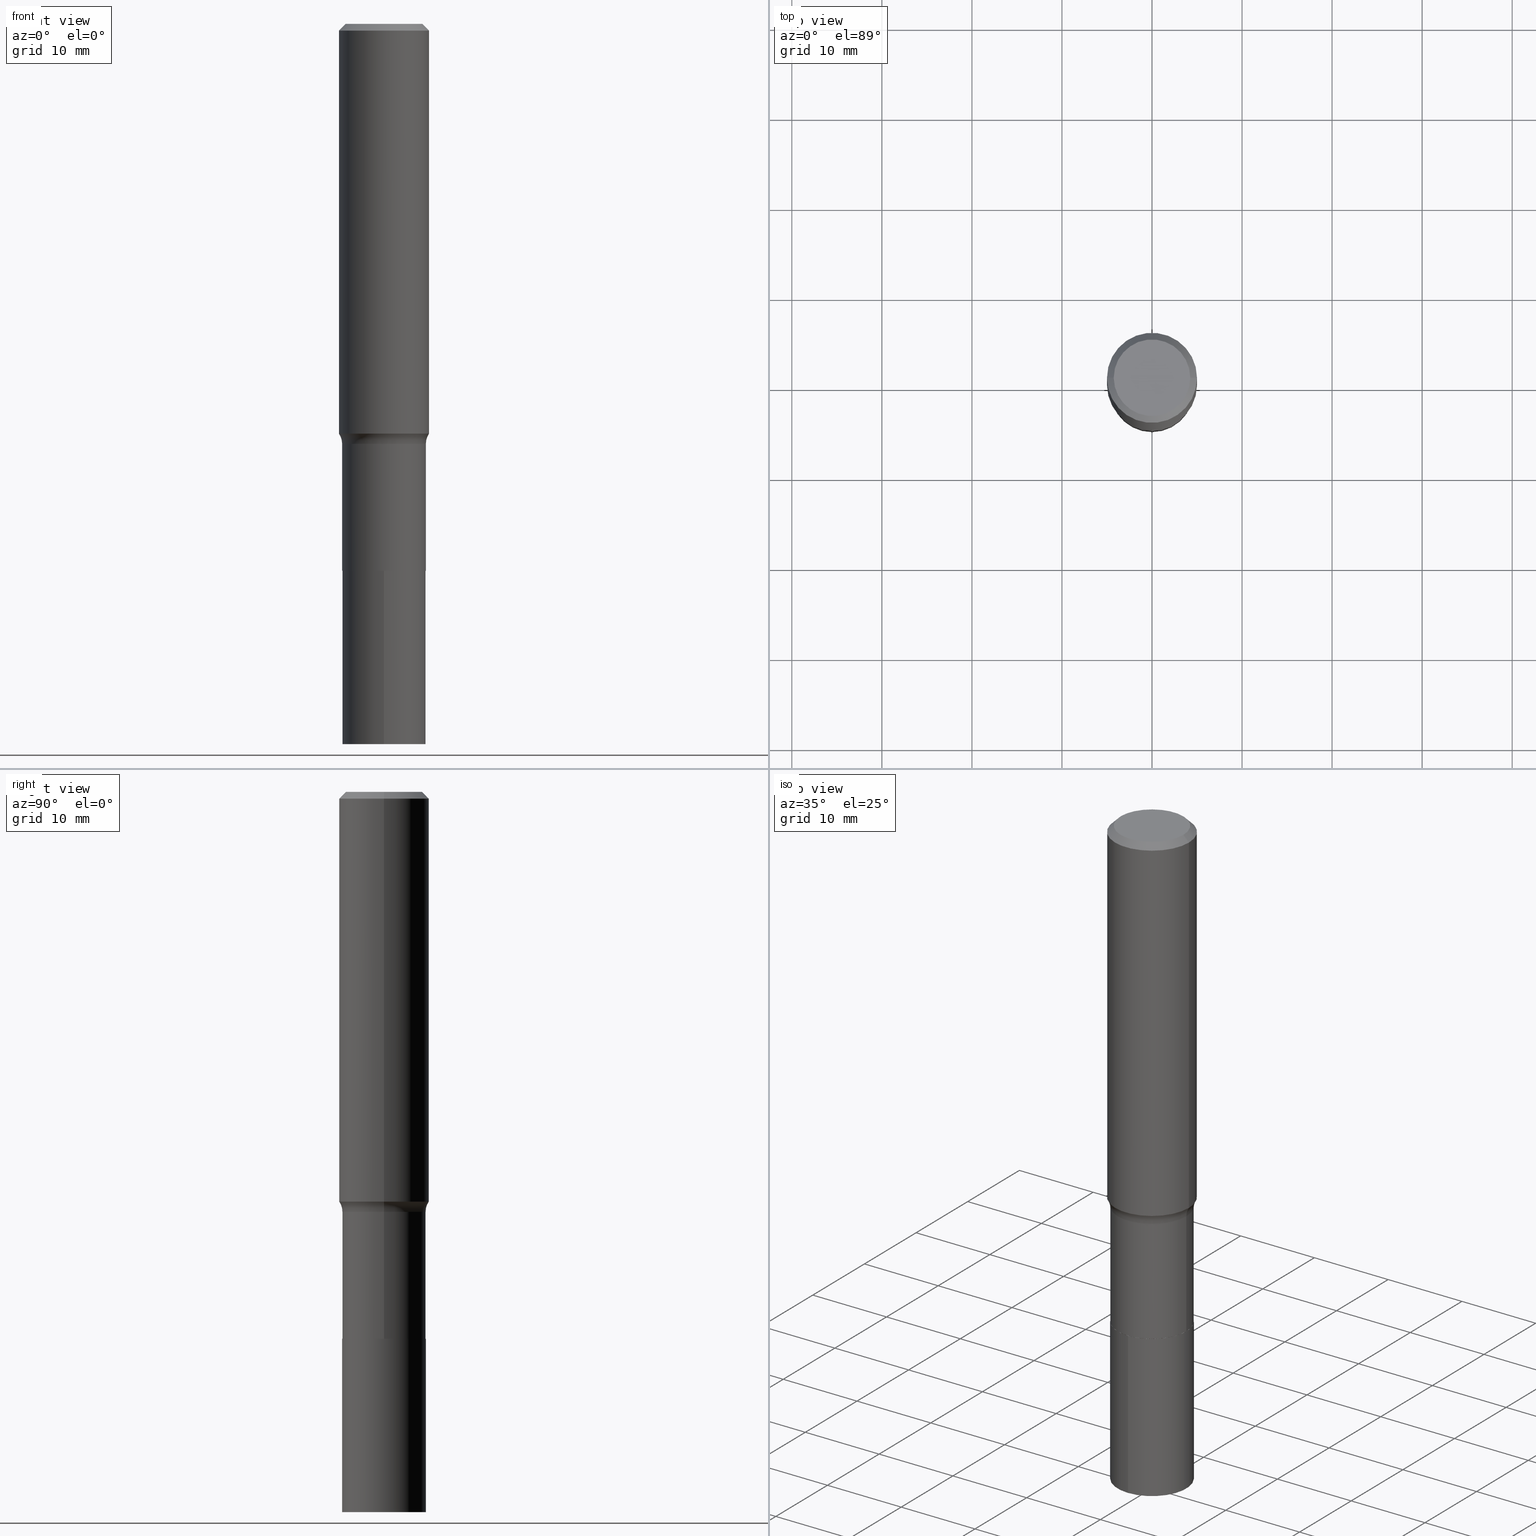
[diagram: canonical four-view strip — front | top / right | iso, engineering-drawing reading convention]
A machine part, canonical four-view strip (front | top / right | iso — engineering-drawing reading convention). The complete STEP part file that produces these views, byte-faithful:
ISO-10303-21;
HEADER;
FILE_DESCRIPTION (( 'STEP AP203' ),
    '1' );
FILE_NAME ('67140.STEP',
    '2024-04-19T15:59:57',
    ( '' ),
    ( '' ),
    'SwSTEP 2.0',
    'SolidWorks 2023',
    '' );
FILE_SCHEMA (( 'CONFIG_CONTROL_DESIGN' ));
ENDSEC;

DATA;
#1 = CC_DESIGN_DATE_AND_TIME_ASSIGNMENT ( #272, #175, ( #251 ) ) ;
#2 = DIRECTION ( 'NONE',  ( 1.000000000000000000, -6.982962677686265922E-15, 4.876176775795935793E-29 ) ) ;
#3 = AXIS2_PLACEMENT_3D ( 'NONE', #265, #199, #339 ) ;
#4 = AXIS2_PLACEMENT_3D ( 'NONE', #451, #375, #160 ) ;
#5 = DIRECTION ( 'NONE',  ( -2.445468806185136877E-29, 3.491481338843145188E-15, 1.000000000000000000 ) ) ;
#6 = VERTEX_POINT ( 'NONE', #300 ) ;
#7 = CARTESIAN_POINT ( 'NONE',  ( 4.491592556320240911E-29, -6.412803775053206012E-15, -1.836699999999999999 ) ) ;
#8 = ORIENTED_EDGE ( 'NONE', *, *, #409, .F. ) ;
#9 = FACE_OUTER_BOUND ( 'NONE', #196, .T. ) ;
#10 = EDGE_LOOP ( 'NONE', ( #369, #79, #461, #88 ) ) ;
#11 = VECTOR ( 'NONE', #313, 39.37007874015748143 ) ;
#12 = CARTESIAN_POINT ( 'NONE',  ( 4.491592556320240911E-29, -6.412803775053206012E-15, -1.836699999999999999 ) ) ;
#13 = VERTEX_POINT ( 'NONE', #60 ) ;
#14 = DIRECTION ( 'NONE',  ( -2.446021969847448330E-29, 3.490689176994594250E-15, 1.000000000000000000 ) ) ;
#15 = PERSON ( 'UNSPECIFIED', 'UNSPECIFIED', 'UNSPECIFIED', ('UNSPECIFIED'), ('UNSPECIFIED'), ('UNSPECIFIED') ) ;
#16 = ORIENTED_EDGE ( 'NONE', *, *, #118, .T. ) ;
#17 = DIRECTION ( 'NONE',  ( -6.982962677686266711E-15, -1.000000000000000000, 3.491481338843145583E-15 ) ) ;
#18 = FACE_OUTER_BOUND ( 'NONE', #189, .T. ) ;
#19 = CLOSED_SHELL ( 'NONE', ( #121, #253, #83, #343 ) ) ;
#20 = PERSON_AND_ORGANIZATION ( #15, #330 ) ;
#21 = CIRCLE ( 'NONE', #4, 0.1830499999999999072 ) ;
#22 = EDGE_LOOP ( 'NONE', ( #405, #331, #150, #219 ) ) ;
#23 = VERTEX_POINT ( 'NONE', #234 ) ;
#24 = VERTEX_POINT ( 'NONE', #133 ) ;
#25 = PERSON_AND_ORGANIZATION_ROLE ( 'creator' ) ;
#26 = EDGE_LOOP ( 'NONE', ( #159, #374, #295, #81 ) ) ;
#27 = PRODUCT_DEFINITION_SHAPE ( 'NONE', 'NONE',  #251 ) ;
#28 = ORIENTED_EDGE ( 'NONE', *, *, #87, .F. ) ;
#29 = AXIS2_PLACEMENT_3D ( 'NONE', #12, #252, #395 ) ;
#30 = ADVANCED_FACE ( 'NONE', ( #228 ), #92, .T. ) ;
#31 = DIRECTION ( 'NONE',  ( 1.000000000000000000, -6.982962677686269866E-15, 0.000000000000000000 ) ) ;
#32 = APPROVAL_DATE_TIME ( #387, #381 ) ;
#33 = APPROVAL ( #371, 'UNSPECIFIED' ) ;
#34 = DIRECTION ( 'NONE',  ( 1.000000000000000000, -6.982962677686269866E-15, 0.000000000000000000 ) ) ;
#35 = APPROVAL_ROLE ( '' ) ;
#36 = CYLINDRICAL_SURFACE ( 'NONE', #354, 0.1830499999999999905 ) ;
#37 = AXIS2_PLACEMENT_3D ( 'NONE', #336, #269, #306 ) ;
#38 = AXIS2_PLACEMENT_3D ( 'NONE', #438, #332, #122 ) ;
#39 = LOCAL_TIME ( 11, 59, 57.00000000000000000, #108 ) ;
#40 = VECTOR ( 'NONE', #303, 39.37007874015748143 ) ;
#41 = CARTESIAN_POINT ( 'NONE',  ( 5.848583196872372803E-29, -8.350226769977267192E-15, -2.391600000000000392 ) ) ;
#42 = CYLINDRICAL_SURFACE ( 'NONE', #74, 0.1968500000000001082 ) ;
#43 = CARTESIAN_POINT ( 'NONE',  ( -0.1968500000000001082, 1.398703375343757985E-15, -9.682923725166787881E-30 ) ) ;
#44 = AXIS2_PLACEMENT_3D ( 'NONE', #394, #356, #76 ) ;
#45 = AXIS2_PLACEMENT_3D ( 'NONE', #449, #454, #305 ) ;
#46 = EDGE_CURVE ( 'NONE', #448, #23, #229, .T. ) ;
#47 = PLANE ( 'NONE',  #192 ) ;
#48 = ORIENTED_EDGE ( 'NONE', *, *, #112, .F. ) ;
#49 = DIRECTION ( 'NONE',  ( -6.982962677686265922E-15, -1.000000000000000000, 3.490689176994594250E-15 ) ) ;
#50 = EDGE_CURVE ( 'NONE', #6, #194, #417, .T. ) ;
#51 = ORIENTED_EDGE ( 'NONE', *, *, #458, .F. ) ;
#52 = DIRECTION ( 'NONE',  ( -2.445468806185136597E-29, 3.491481338843145583E-15, 1.000000000000000000 ) ) ;
#53 = VERTEX_POINT ( 'NONE', #310 ) ;
#54 = AXIS2_PLACEMENT_3D ( 'NONE', #69, #433, #2 ) ;
#55 = CARTESIAN_POINT ( 'NONE',  ( 7.220858017463203355E-31, -1.030947152326915746E-16, -0.02952750000000016820 ) ) ;
#56 = ORIENTED_EDGE ( 'NONE', *, *, #46, .F. ) ;
#57 = ORIENTED_EDGE ( 'NONE', *, *, #59, .T. ) ;
#58 = MECHANICAL_CONTEXT ( 'NONE', #334, 'mechanical' ) ;
#59 = EDGE_CURVE ( 'NONE', #13, #97, #162, .T. ) ;
#60 = CARTESIAN_POINT ( 'NONE',  ( 0.1673224999999999851, -1.300749711163072397E-15, 4.096137381456741925E-18 ) ) ;
#61 = CARTESIAN_POINT ( 'NONE',  ( 0.1830499999999999905, -9.626712347458317933E-15, -2.391100000000000225 ) ) ;
#62 = AXIS2_PLACEMENT_3D ( 'NONE', #259, #256, #289 ) ;
#63 = ADVANCED_FACE ( 'NONE', ( #18 ), #443, .T. ) ;
#64 = VERTEX_POINT ( 'NONE', #304 ) ;
#65 = DIRECTION ( 'NONE',  ( 1.000000000000000000, -6.982962677686269866E-15, 0.000000000000000000 ) ) ;
#66 = ADVANCED_FACE ( 'NONE', ( #455 ), #415, .F. ) ;
#67 = ORIENTED_EDGE ( 'NONE', *, *, #276, .T. ) ;
#68 = AXIS2_PLACEMENT_3D ( 'NONE', #144, #176, #247 ) ;
#69 = CARTESIAN_POINT ( 'NONE',  ( 5.848583196872372803E-29, -8.350226769977267192E-15, -2.391600000000000392 ) ) ;
#70 = DIRECTION ( 'NONE',  ( -6.982962677686264344E-15, -1.000000000000000000, 2.984810700534567995E-15 ) ) ;
#71 = FACE_OUTER_BOUND ( 'NONE', #262, .T. ) ;
#72 = COORDINATED_UNIVERSAL_TIME_OFFSET ( 5, 0, .BEHIND. ) ;
#73 = CARTESIAN_POINT ( 'NONE',  ( -0.1825499999999999623, -7.050481778673093961E-15, -2.391600000000000392 ) ) ;
#74 = AXIS2_PLACEMENT_3D ( 'NONE', #323, #291, #325 ) ;
#75 = CALENDAR_DATE ( 2024, 19, 4 ) ;
#76 = DIRECTION ( 'NONE',  ( -6.982962677686264344E-15, -1.000000000000000000, 2.984810700534567995E-15 ) ) ;
#77 = MANIFOLD_SOLID_BREP ( 'Body-Move/Copy2[2]', #315 ) ;
#78 = LINE ( 'NONE', #296, #384 ) ;
#79 = ORIENTED_EDGE ( 'NONE', *, *, #87, .T. ) ;
#80 = DIRECTION ( 'NONE',  ( -2.445468806185136597E-29, 3.491481338843145583E-15, 1.000000000000000000 ) ) ;
#81 = ORIENTED_EDGE ( 'NONE', *, *, #233, .F. ) ;
#82 = CC_DESIGN_PERSON_AND_ORGANIZATION_ASSIGNMENT ( #434, #318, ( #341 ) ) ;
#83 = ADVANCED_FACE ( 'NONE', ( #180 ), #36, .T. ) ;
#84 = CARTESIAN_POINT ( 'NONE',  ( 0.1825499999999999623, -9.624966606788895640E-15, -2.391600000000000392 ) ) ;
#85 = ORIENTED_EDGE ( 'NONE', *, *, #239, .T. ) ;
#86 = CARTESIAN_POINT ( 'NONE',  ( -5.008488096090108951E-47, 7.150793614331948590E-33, 2.048068690724054183E-18 ) ) ;
#87 = EDGE_CURVE ( 'NONE', #166, #260, #172, .T. ) ;
#88 = ORIENTED_EDGE ( 'NONE', *, *, #216, .F. ) ;
#89 = EDGE_CURVE ( 'NONE', #13, #401, #348, .T. ) ;
#90 = AXIS2_PLACEMENT_3D ( 'NONE', #206, #351, #34 ) ;
#91 = LOCAL_TIME ( 11, 59, 57.00000000000000000, #274 ) ;
#92 = CYLINDRICAL_SURFACE ( 'NONE', #37, 0.1830499999999999350 ) ;
#93 = PRODUCT ( '67140', '67140', '', ( #58 ) ) ;
#94 = DIRECTION ( 'NONE',  ( 2.438088387897960049E-29, -3.491481338843145188E-15, -1.000000000000000000 ) ) ;
#95 = ORIENTED_EDGE ( 'NONE', *, *, #46, .T. ) ;
#96 =( LENGTH_UNIT ( ) NAMED_UNIT ( * ) SI_UNIT ( $, .METRE. ) );
#97 = VERTEX_POINT ( 'NONE', #465 ) ;
#98 = AXIS2_PLACEMENT_3D ( 'NONE', #440, #193, #223 ) ;
#99 = LENGTH_MEASURE_WITH_UNIT ( LENGTH_MEASURE( 0.02539999999999999897 ), #96 );
#100 = AXIS2_PLACEMENT_3D ( 'NONE', #203, #195, #456 ) ;
#101 = ORIENTED_EDGE ( 'NONE', *, *, #402, .T. ) ;
#102 = CARTESIAN_POINT ( 'NONE',  ( -0.1830499999999999072, -6.079993924371663316E-15, -1.836699999999999999 ) ) ;
#103 = CIRCLE ( 'NONE', #360, 0.1830499999999999072 ) ;
#104 = DIRECTION ( 'NONE',  ( -2.445468806185136597E-29, 3.491481338843145583E-15, 1.000000000000000000 ) ) ;
#105 = DIRECTION ( 'NONE',  ( 1.000000000000000000, -6.982962677686266711E-15, 4.883557194083112901E-29 ) ) ;
#106 = PERSON_AND_ORGANIZATION ( #15, #330 ) ;
#107 = DIRECTION ( 'NONE',  ( 2.445468806185136597E-29, -3.491481338843145583E-15, -1.000000000000000000 ) ) ;
#108 = COORDINATED_UNIVERSAL_TIME_OFFSET ( 5, 0, .BEHIND. ) ;
#109 = DIRECTION ( 'NONE',  ( 1.000000000000000000, -6.982962677686266711E-15, 4.876176775795935793E-29 ) ) ;
#110 = CIRCLE ( 'NONE', #462, 0.08000000000000002942 ) ;
#111 = LINE ( 'NONE', #220, #139 ) ;
#112 = EDGE_CURVE ( 'NONE', #24, #359, #436, .T. ) ;
#113 = DIRECTION ( 'NONE',  ( -2.445468806185136877E-29, 3.491481338843145188E-15, 1.000000000000000000 ) ) ;
#114 = EDGE_CURVE ( 'NONE', #260, #448, #142, .T. ) ;
#115 = ORIENTED_EDGE ( 'NONE', *, *, #59, .F. ) ;
#116 = FACE_OUTER_BOUND ( 'NONE', #10, .T. ) ;
#117 = TOROIDAL_SURFACE ( 'NONE', #29, 0.2630499999999999505, 0.08000000000000005718 ) ;
#118 = EDGE_CURVE ( 'NONE', #260, #166, #340, .T. ) ;
#119 = CARTESIAN_POINT ( 'NONE',  ( -0.1830499999999999350, 1.300648477808862928E-15, -9.004110682711602587E-30 ) ) ;
#120 = ORIENTED_EDGE ( 'NONE', *, *, #431, .T. ) ;
#121 = ADVANCED_FACE ( 'NONE', ( #238 ), #243, .T. ) ;
#122 = DIRECTION ( 'NONE',  ( -1.000000000000000000, 7.105427357601001859E-15, 0.000000000000000000 ) ) ;
#123 = AXIS2_PLACEMENT_3D ( 'NONE', #386, #423, #70 ) ;
#124 =( NAMED_UNIT ( * ) PLANE_ANGLE_UNIT ( ) SI_UNIT ( $, .RADIAN. ) );
#125 = ORIENTED_EDGE ( 'NONE', *, *, #426, .F. ) ;
#126 = APPROVAL_ROLE ( '' ) ;
#127 = VERTEX_POINT ( 'NONE', #102 ) ;
#128 = DIMENSIONAL_EXPONENTS ( 1.000000000000000000, 0.000000000000000000, 0.000000000000000000, 0.000000000000000000, 0.000000000000000000, 0.000000000000000000, 0.000000000000000000 ) ;
#129 = EDGE_LOOP ( 'NONE', ( #324, #156, #221, #412 ) ) ;
#130 = CONICAL_SURFACE ( 'NONE', #218, 0.1825499999999999623, 0.7853981633975507526 ) ;
#131 = APPLICATION_PROTOCOL_DEFINITION ( 'international standard', 'config_control_design', 1994, #174 ) ;
#132 = VECTOR ( 'NONE', #337, 39.37007874015748143 ) ;
#133 = CARTESIAN_POINT ( 'NONE',  ( -0.1968500000000002470, -4.857272634184849180E-15, -1.791782742737339396 ) ) ;
#134 = APPROVAL_DATE_TIME ( #211, #413 ) ;
#135 = ADVANCED_FACE ( 'NONE', ( #464 ), #425, .T. ) ;
#136 = ORIENTED_EDGE ( 'NONE', *, *, #349, .F. ) ;
#137 = FACE_OUTER_BOUND ( 'NONE', #439, .T. ) ;
#138 = PERSON_AND_ORGANIZATION_ROLE ( 'classification_officer' ) ;
#139 = VECTOR ( 'NONE', #254, 39.37007874015748143 ) ;
#140 = CARTESIAN_POINT ( 'NONE',  ( 0.1825499999999999623, -9.624966606788895640E-15, -2.391600000000000392 ) ) ;
#141 = APPROVAL_PERSON_ORGANIZATION ( #246, #413, #393 ) ;
#142 = LINE ( 'NONE', #140, #184 ) ;
#143 = SHAPE_DEFINITION_REPRESENTATION ( #27, #309 ) ;
#144 = CARTESIAN_POINT ( 'NONE',  ( 7.220858017463203355E-31, -1.030947152326915746E-16, -0.02952750000000016820 ) ) ;
#145 = ADVANCED_FACE ( 'NONE', ( #181 ), #392, .F. ) ;
#146 = DIRECTION ( 'NONE',  ( 1.000000000000000000, -6.982962677686269866E-15, 0.000000000000000000 ) ) ;
#147 = AXIS2_PLACEMENT_3D ( 'NONE', #429, #283, #105 ) ;
#148 = APPROVAL_PERSON_ORGANIZATION ( #20, #33, #126 ) ;
#149 = LINE ( 'NONE', #43, #294 ) ;
#150 = ORIENTED_EDGE ( 'NONE', *, *, #182, .T. ) ;
#151 = LINE ( 'NONE', #119, #460 ) ;
#152 = EDGE_LOOP ( 'NONE', ( #48, #85, #326, #51 ) ) ;
#153 = DIRECTION ( 'NONE',  ( 1.000000000000000000, -6.982962677686263555E-15, 0.000000000000000000 ) ) ;
#154 = AXIS2_PLACEMENT_3D ( 'NONE', #457, #204, #173 ) ;
#155 = CIRCLE ( 'NONE', #68, 0.1968500000000000250 ) ;
#156 = ORIENTED_EDGE ( 'NONE', *, *, #431, .F. ) ;
#157 = EDGE_CURVE ( 'NONE', #359, #97, #245, .T. ) ;
#158 = DIRECTION ( 'NONE',  ( 6.982962677686265922E-15, 1.000000000000000000, -3.490689176994594250E-15 ) ) ;
#159 = ORIENTED_EDGE ( 'NONE', *, *, #284, .F. ) ;
#160 = DIRECTION ( 'NONE',  ( 1.000000000000000000, -6.982962677686263555E-15, 0.000000000000000000 ) ) ;
#161 = ADVANCED_FACE ( 'NONE', ( #71 ), #383, .T. ) ;
#162 = LINE ( 'NONE', #225, #391 ) ;
#163 = SECURITY_CLASSIFICATION ( '', '', #282 ) ;
#164 = APPROVAL_DATE_TIME ( #373, #33 ) ;
#165 = EDGE_CURVE ( 'NONE', #267, #97, #155, .T. ) ;
#166 = VERTEX_POINT ( 'NONE', #73 ) ;
#167 = ORIENTED_EDGE ( 'NONE', *, *, #226, .T. ) ;
#168 = CARTESIAN_POINT ( 'NONE',  ( -0.1825499999999999623, -7.053131005847205162E-15, -2.391600000000000392 ) ) ;
#169 = ORIENTED_EDGE ( 'NONE', *, *, #284, .T. ) ;
#170 = DIRECTION ( 'NONE',  ( -1.000000000000000000, 6.982962677686265922E-15, -4.876176775795935793E-29 ) ) ;
#171 = CC_DESIGN_PERSON_AND_ORGANIZATION_ASSIGNMENT ( #266, #25, ( #251 ) ) ;
#172 = CIRCLE ( 'NONE', #452, 0.1825499999999999623 ) ;
#173 = DIRECTION ( 'NONE',  ( 1.000000000000000000, -6.982962677686271444E-15, 0.000000000000000000 ) ) ;
#174 = APPLICATION_CONTEXT ( 'configuration controlled 3d designs of mechanical parts and assemblies' ) ;
#175 = DATE_TIME_ROLE ( 'creation_date' ) ;
#176 = DIRECTION ( 'NONE',  ( -2.445468806185136597E-29, 3.491481338843145583E-15, 1.000000000000000000 ) ) ;
#177 = ADVANCED_FACE ( 'NONE', ( #137 ), #355, .T. ) ;
#178 = DIRECTION ( 'NONE',  ( -1.000000000000000000, 6.982962677686265922E-15, 0.000000000000000000 ) ) ;
#179 = CIRCLE ( 'NONE', #287, 0.1968500000000002470 ) ;
#180 = FACE_OUTER_BOUND ( 'NONE', #22, .T. ) ;
#181 = FACE_OUTER_BOUND ( 'NONE', #129, .T. ) ;
#182 = EDGE_CURVE ( 'NONE', #194, #53, #285, .T. ) ;
#183 = FACE_OUTER_BOUND ( 'NONE', #152, .T. ) ;
#184 = VECTOR ( 'NONE', #319, 39.37007874015748143 ) ;
#185 =( GEOMETRIC_REPRESENTATION_CONTEXT ( 3 ) GLOBAL_UNCERTAINTY_ASSIGNED_CONTEXT ( ( #430 ) ) GLOBAL_UNIT_ASSIGNED_CONTEXT ( ( #232, #124, #344 ) ) REPRESENTATION_CONTEXT ( 'NONE', 'WORKASPACE' ) );
#186 = EDGE_LOOP ( 'NONE', ( #95, #169, #125, #190 ) ) ;
#187 = DIRECTION ( 'NONE',  ( -2.445468806185136597E-29, 3.491481338843145583E-15, 1.000000000000000000 ) ) ;
#188 = DIRECTION ( 'NONE',  ( 1.000000000000000000, -6.982962677686271444E-15, 0.000000000000000000 ) ) ;
#189 = EDGE_LOOP ( 'NONE', ( #224, #57, #364, #297 ) ) ;
#190 = ORIENTED_EDGE ( 'NONE', *, *, #312, .F. ) ;
#191 = CARTESIAN_POINT ( 'NONE',  ( 0.1968500000000002470, -7.630572212631153309E-15, -1.791782742737339396 ) ) ;
#192 = AXIS2_PLACEMENT_3D ( 'NONE', #327, #14, #49 ) ;
#193 = DIRECTION ( 'NONE',  ( -2.446021969847448891E-29, 3.490689176994593856E-15, 1.000000000000000000 ) ) ;
#194 = VERTEX_POINT ( 'NONE', #382 ) ;
#195 = DIRECTION ( 'NONE',  ( 0.000000000000000000, 0.000000000000000000, 1.000000000000000000 ) ) ;
#196 = EDGE_LOOP ( 'NONE', ( #202, #167 ) ) ;
#197 = EDGE_CURVE ( 'NONE', #194, #6, #418, .T. ) ;
#198 = LINE ( 'NONE', #416, #132 ) ;
#199 = DIRECTION ( 'NONE',  ( 2.445468806185136597E-29, -3.491481338843145583E-15, -1.000000000000000000 ) ) ;
#200 = AXIS2_PLACEMENT_3D ( 'NONE', #403, #217, #158 ) ;
#201 = ORIENTED_EDGE ( 'NONE', *, *, #370, .T. ) ;
#202 = ORIENTED_EDGE ( 'NONE', *, *, #321, .T. ) ;
#203 = CARTESIAN_POINT ( 'NONE',  ( 0.000000000000000000, 0.000000000000000000, 0.000000000000000000 ) ) ;
#204 = DIRECTION ( 'NONE',  ( -2.445468806185136597E-29, 3.491481338843145583E-15, 1.000000000000000000 ) ) ;
#205 = DIRECTION ( 'NONE',  ( -2.446021969847448891E-29, 3.490689176994593856E-15, 1.000000000000000000 ) ) ;
#206 = CARTESIAN_POINT ( 'NONE',  ( 5.848583196872372803E-29, -8.350226769977267192E-15, -2.391600000000000392 ) ) ;
#207 = CARTESIAN_POINT ( 'NONE',  ( 5.848583196872372803E-29, -8.350226769977267192E-15, -2.391600000000000392 ) ) ;
#208 = PERSON_AND_ORGANIZATION_ROLE ( 'design_supplier' ) ;
#209 = CIRCLE ( 'NONE', #376, 0.1830499999999999905 ) ;
#210 = DIRECTION ( 'NONE',  ( -2.445468806185136597E-29, 3.491481338843145583E-15, 1.000000000000000000 ) ) ;
#211 = DATE_AND_TIME ( #75, #91 ) ;
#212 = FACE_OUTER_BOUND ( 'NONE', #420, .T. ) ;
#213 = ADVANCED_FACE ( 'NONE', ( #212 ), #42, .T. ) ;
#214 = CARTESIAN_POINT ( 'NONE',  ( 5.847360462469281123E-29, -8.348481029307846477E-15, -2.391100000000000225 ) ) ;
#215 = VERTEX_POINT ( 'NONE', #363 ) ;
#216 = EDGE_CURVE ( 'NONE', #23, #448, #209, .T. ) ;
#217 = DIRECTION ( 'NONE',  ( 2.446021969847448330E-29, -3.490689176994594250E-15, -1.000000000000000000 ) ) ;
#218 = AXIS2_PLACEMENT_3D ( 'NONE', #367, #187, #222 ) ;
#219 = ORIENTED_EDGE ( 'NONE', *, *, #226, .F. ) ;
#220 = CARTESIAN_POINT ( 'NONE',  ( 0.1830499999999999350, -1.278231318150470667E-15, 8.925841588094458053E-30 ) ) ;
#221 = ORIENTED_EDGE ( 'NONE', *, *, #458, .T. ) ;
#222 = DIRECTION ( 'NONE',  ( 1.000000000000000000, -6.982962677686269866E-15, 0.000000000000000000 ) ) ;
#223 = DIRECTION ( 'NONE',  ( -6.982962677686264344E-15, -1.000000000000000000, 2.984810700534567995E-15 ) ) ;
#224 = ORIENTED_EDGE ( 'NONE', *, *, #89, .F. ) ;
#225 = CARTESIAN_POINT ( 'NONE',  ( 0.1968500000000000250, -1.453583746094017706E-15, -0.02952750000000016820 ) ) ;
#226 = EDGE_CURVE ( 'NONE', #215, #53, #444, .T. ) ;
#227 = CALENDAR_DATE ( 2024, 19, 4 ) ;
#228 = FACE_OUTER_BOUND ( 'NONE', #26, .T. ) ;
#229 = CIRCLE ( 'NONE', #154, 0.1830499999999999905 ) ;
#230 = CIRCLE ( 'NONE', #38, 0.08000000000000002942 ) ;
#231 = AXIS2_PLACEMENT_3D ( 'NONE', #207, #390, #31 ) ;
#232 =( CONVERSION_BASED_UNIT ( 'INCH', #99 ) LENGTH_UNIT ( ) NAMED_UNIT ( #128 ) );
#233 = EDGE_CURVE ( 'NONE', #127, #64, #103, .T. ) ;
#234 = CARTESIAN_POINT ( 'NONE',  ( -0.1830499999999999905, -6.079993924371662527E-15, -2.391100000000000225 ) ) ;
#235 = MANIFOLD_SOLID_BREP ( 'Body-Move/Copy2[1]', #19 ) ;
#236 = PERSON_AND_ORGANIZATION ( #15, #330 ) ;
#237 = EDGE_LOOP ( 'NONE', ( #275, #342 ) ) ;
#238 = FACE_OUTER_BOUND ( 'NONE', #410, .T. ) ;
#239 = EDGE_CURVE ( 'NONE', #24, #127, #230, .T. ) ;
#240 = AXIS2_PLACEMENT_3D ( 'NONE', #468, #320, #109 ) ;
#241 = DESIGN_CONTEXT ( 'detailed design', #174, 'design' ) ;
#242 = DATE_TIME_ROLE ( 'classification_date' ) ;
#243 = CYLINDRICAL_SURFACE ( 'NONE', #123, 0.1830499999999999905 ) ;
#244 = CC_DESIGN_PERSON_AND_ORGANIZATION_ASSIGNMENT ( #385, #208, ( #341 ) ) ;
#245 = LINE ( 'NONE', #388, #278 ) ;
#246 = PERSON_AND_ORGANIZATION ( #15, #330 ) ;
#247 = DIRECTION ( 'NONE',  ( 1.000000000000000000, -6.982962677686265922E-15, 0.000000000000000000 ) ) ;
#248 = PERSON_AND_ORGANIZATION ( #15, #330 ) ;
#249 = CIRCLE ( 'NONE', #398, 0.1830499999999999905 ) ;
#250 = CARTESIAN_POINT ( 'NONE',  ( -1.278231318150412291E-15, -0.1830500000000083449, -2.391599999999999504 ) ) ;
#251 = PRODUCT_DEFINITION ( 'UNKNOWN', '', #341, #241 ) ;
#252 = DIRECTION ( 'NONE',  ( -2.445468806185136597E-29, 3.491481338843145583E-15, 1.000000000000000000 ) ) ;
#253 = ADVANCED_FACE ( 'NONE', ( #329 ), #47, .F. ) ;
#254 = DIRECTION ( 'NONE',  ( -2.445468806185136877E-29, 3.491481338843145188E-15, 1.000000000000000000 ) ) ;
#255 = ORIENTED_EDGE ( 'NONE', *, *, #89, .T. ) ;
#256 = DIRECTION ( 'NONE',  ( -2.445468806185136597E-29, 3.491481338843145583E-15, 1.000000000000000000 ) ) ;
#257 = CIRCLE ( 'NONE', #316, 0.1968500000000000250 ) ;
#258 = ORIENTED_EDGE ( 'NONE', *, *, #114, .F. ) ;
#259 = CARTESIAN_POINT ( 'NONE',  ( 0.000000000000000000, 0.000000000000000000, 0.000000000000000000 ) ) ;
#260 = VERTEX_POINT ( 'NONE', #84 ) ;
#261 = FACE_OUTER_BOUND ( 'NONE', #422, .T. ) ;
#262 = EDGE_LOOP ( 'NONE', ( #115, #8, #380, #446 ) ) ;
#263 = AXIS2_PLACEMENT_3D ( 'NONE', #352, #107, #178 ) ;
#264 = CIRCLE ( 'NONE', #45, 0.1673224999999999851 ) ;
#265 = CARTESIAN_POINT ( 'NONE',  ( 7.220858017463203355E-31, -1.030947152326915746E-16, -0.02952750000000016820 ) ) ;
#266 = PERSON_AND_ORGANIZATION ( #15, #330 ) ;
#267 = VERTEX_POINT ( 'NONE', #358 ) ;
#268 = CARTESIAN_POINT ( 'NONE',  ( 4.381748804825011085E-29, -6.255976009528609334E-15, -1.791782742737339396 ) ) ;
#269 = DIRECTION ( 'NONE',  ( -2.445468806185136597E-29, 3.491481338843145583E-15, 1.000000000000000000 ) ) ;
#270 = AXIS2_PLACEMENT_3D ( 'NONE', #273, #378, #347 ) ;
#271 = CC_DESIGN_APPROVAL ( #381, ( #163 ) ) ;
#272 = DATE_AND_TIME ( #459, #322 ) ;
#273 = CARTESIAN_POINT ( 'NONE',  ( 7.702667850016740557E-29, -1.099616916613917186E-14, -3.149600000000000843 ) ) ;
#274 = COORDINATED_UNIVERSAL_TIME_OFFSET ( 5, 0, .BEHIND. ) ;
#275 = ORIENTED_EDGE ( 'NONE', *, *, #197, .F. ) ;
#276 = EDGE_CURVE ( 'NONE', #24, #267, #149, .T. ) ;
#277 = DIRECTION ( 'NONE',  ( -6.982962677686264344E-15, -1.000000000000000000, 2.984810700534567995E-15 ) ) ;
#278 = VECTOR ( 'NONE', #435, 39.37007874015748143 ) ;
#279 = AXIS2_PLACEMENT_3D ( 'NONE', #86, #94, #170 ) ;
#280 = DIRECTION ( 'NONE',  ( 1.000000000000000000, -6.982962677686267499E-15, 4.876294436782262290E-29 ) ) ;
#281 = ADVANCED_FACE ( 'NONE', ( #116 ), #130, .T. ) ;
#282 = SECURITY_CLASSIFICATION_LEVEL ( 'unclassified' ) ;
#283 = DIRECTION ( 'NONE',  ( -2.445468806185136597E-29, 3.491481338843145583E-15, 1.000000000000000000 ) ) ;
#284 = EDGE_CURVE ( 'NONE', #23, #127, #151, .T. ) ;
#285 = LINE ( 'NONE', #250, #11 ) ;
#286 = AXIS2_PLACEMENT_3D ( 'NONE', #350, #104, #146 ) ;
#287 = AXIS2_PLACEMENT_3D ( 'NONE', #268, #335, #65 ) ;
#288 = DIRECTION ( 'NONE',  ( -2.446021969847448891E-29, 3.490689176994593856E-15, 1.000000000000000000 ) ) ;
#289 = DIRECTION ( 'NONE',  ( 1.000000000000000000, -6.982962677686266711E-15, 4.876176775795936353E-29 ) ) ;
#290 = ORIENTED_EDGE ( 'NONE', *, *, #182, .F. ) ;
#291 = DIRECTION ( 'NONE',  ( -2.445468806185136597E-29, 3.491481338843145583E-15, 1.000000000000000000 ) ) ;
#292 = ORIENTED_EDGE ( 'NONE', *, *, #409, .T. ) ;
#293 = CARTESIAN_POINT ( 'NONE',  ( 5.848583196872372803E-29, -8.350226769977267192E-15, -2.391600000000000392 ) ) ;
#294 = VECTOR ( 'NONE', #113, 39.37007874015748143 ) ;
#295 = ORIENTED_EDGE ( 'NONE', *, *, #312, .T. ) ;
#296 = CARTESIAN_POINT ( 'NONE',  ( 1.300648477808921501E-15, 0.1830499999999916083, -2.391600000000000836 ) ) ;
#297 = ORIENTED_EDGE ( 'NONE', *, *, #450, .F. ) ;
#298 = EDGE_LOOP ( 'NONE', ( #16, #101, #56, #258 ) ) ;
#299 = CARTESIAN_POINT ( 'NONE',  ( 0.2630499999999999505, -8.249672107418577542E-15, -1.836699999999999999 ) ) ;
#300 = CARTESIAN_POINT ( 'NONE',  ( 1.300648477808930770E-15, 0.1830499999999889715, -3.149600000000001288 ) ) ;
#301 = ADVANCED_FACE ( 'NONE', ( #365 ), #445, .T. ) ;
#302 = CC_DESIGN_APPROVAL ( #33, ( #251 ) ) ;
#303 = DIRECTION ( 'NONE',  ( -0.7071067811866199593, 7.493145998870616062E-15, 0.7071067811864750752 ) ) ;
#304 = CARTESIAN_POINT ( 'NONE',  ( 0.1830499999999999072, -7.691035093203675890E-15, -1.836699999999999999 ) ) ;
#305 = DIRECTION ( 'NONE',  ( 1.000000000000000000, -6.982962677686267499E-15, 4.876294436782262290E-29 ) ) ;
#306 = DIRECTION ( 'NONE',  ( 1.000000000000000000, -6.982962677686266711E-15, 4.876176775795936353E-29 ) ) ;
#307 = COORDINATED_UNIVERSAL_TIME_OFFSET ( 5, 0, .BEHIND. ) ;
#308 = ORIENTED_EDGE ( 'NONE', *, *, #112, .T. ) ;
#309 = ADVANCED_BREP_SHAPE_REPRESENTATION ( '67140', ( #235, #77, #100 ), #185 ) ;
#310 = CARTESIAN_POINT ( 'NONE',  ( -1.278231318150412291E-15, -0.1830500000000083449, -2.391599999999999504 ) ) ;
#311 = APPROVAL_STATUS ( 'not_yet_approved' ) ;
#312 = EDGE_CURVE ( 'NONE', #448, #64, #111, .T. ) ;
#313 = DIRECTION ( 'NONE',  ( -2.446021969847448891E-29, 3.490689176994594250E-15, 1.000000000000000000 ) ) ;
#314 = CARTESIAN_POINT ( 'NONE',  ( 5.848583196872372803E-29, -8.350226769977267192E-15, -2.391600000000000392 ) ) ;
#315 = CLOSED_SHELL ( 'NONE', ( #135, #63, #177, #357, #301, #30, #145, #213, #161, #397, #66, #281 ) ) ;
#316 = AXIS2_PLACEMENT_3D ( 'NONE', #55, #52, #400 ) ;
#317 = DIRECTION ( 'NONE',  ( 1.000000000000000000, -6.982962677686269866E-15, 0.000000000000000000 ) ) ;
#318 = PERSON_AND_ORGANIZATION_ROLE ( 'creator' ) ;
#319 = DIRECTION ( 'NONE',  ( 0.7071067811866199593, -2.468850131083015945E-15, 0.7071067811864750752 ) ) ;
#320 = DIRECTION ( 'NONE',  ( -2.445468806185136597E-29, 3.491481338843145583E-15, 1.000000000000000000 ) ) ;
#321 = EDGE_CURVE ( 'NONE', #53, #215, #249, .T. ) ;
#322 = LOCAL_TIME ( 11, 59, 57.00000000000000000, #307 ) ;
#323 = CARTESIAN_POINT ( 'NONE',  ( 0.000000000000000000, 0.000000000000000000, 0.000000000000000000 ) ) ;
#324 = ORIENTED_EDGE ( 'NONE', *, *, #239, .F. ) ;
#325 = DIRECTION ( 'NONE',  ( 1.000000000000000000, -6.982962677686266711E-15, 4.876176775795935793E-29 ) ) ;
#326 = ORIENTED_EDGE ( 'NONE', *, *, #233, .T. ) ;
#327 = CARTESIAN_POINT ( 'NONE',  ( 1.137593422465260839E-29, -2.039772940722404930E-14, -3.149600000000000843 ) ) ;
#328 = ORIENTED_EDGE ( 'NONE', *, *, #165, .F. ) ;
#329 = FACE_OUTER_BOUND ( 'NONE', #237, .T. ) ;
#330 = ORGANIZATION ( 'UNSPECIFIED', 'UNSPECIFIED', '' ) ;
#331 = ORIENTED_EDGE ( 'NONE', *, *, #50, .T. ) ;
#332 = DIRECTION ( 'NONE',  ( 7.105427357601001859E-15, 1.000000000000000000, -3.491481338843145583E-15 ) ) ;
#333 = EDGE_LOOP ( 'NONE', ( #362, #28 ) ) ;
#334 = APPLICATION_CONTEXT ( 'configuration controlled 3d designs of mechanical parts and assemblies' ) ;
#335 = DIRECTION ( 'NONE',  ( -2.445468806185136597E-29, 3.491481338843145583E-15, 1.000000000000000000 ) ) ;
#336 = CARTESIAN_POINT ( 'NONE',  ( 0.000000000000000000, 0.000000000000000000, 0.000000000000000000 ) ) ;
#337 = DIRECTION ( 'NONE',  ( -0.7071067811865456854, 2.468850131082237733E-15, -0.7071067811865493491 ) ) ;
#338 = PRODUCT_RELATED_PRODUCT_CATEGORY ( 'detail', '', ( #93 ) ) ;
#339 = DIRECTION ( 'NONE',  ( -1.000000000000000000, 6.982962677686265922E-15, 0.000000000000000000 ) ) ;
#340 = CIRCLE ( 'NONE', #231, 0.1825499999999999623 ) ;
#341 = PRODUCT_DEFINITION_FORMATION_WITH_SPECIFIED_SOURCE ( 'ANY', '', #93, .NOT_KNOWN. ) ;
#342 = ORIENTED_EDGE ( 'NONE', *, *, #50, .F. ) ;
#343 = ADVANCED_FACE ( 'NONE', ( #9 ), #437, .F. ) ;
#344 =( NAMED_UNIT ( * ) SI_UNIT ( $, .STERADIAN. ) SOLID_ANGLE_UNIT ( ) );
#345 = ORIENTED_EDGE ( 'NONE', *, *, #321, .F. ) ;
#346 = DIRECTION ( 'NONE',  ( 1.000000000000000000, -6.982962677686269077E-15, 0.000000000000000000 ) ) ;
#347 = DIRECTION ( 'NONE',  ( -6.982962677686264344E-15, -1.000000000000000000, 2.984810700534567995E-15 ) ) ;
#348 = CIRCLE ( 'NONE', #407, 0.1673224999999999851 ) ;
#349 = EDGE_CURVE ( 'NONE', #97, #267, #257, .T. ) ;
#350 = CARTESIAN_POINT ( 'NONE',  ( 4.381748804825011085E-29, -6.255976009528609334E-15, -1.791782742737339396 ) ) ;
#351 = DIRECTION ( 'NONE',  ( -2.445468806185136597E-29, 3.491481338843145583E-15, 1.000000000000000000 ) ) ;
#352 = CARTESIAN_POINT ( 'NONE',  ( 7.220858017463203355E-31, -1.030947152326915746E-16, -0.02952750000000016820 ) ) ;
#353 = CC_DESIGN_PERSON_AND_ORGANIZATION_ASSIGNMENT ( #106, #138, ( #163 ) ) ;
#354 = AXIS2_PLACEMENT_3D ( 'NONE', #314, #205, #277 ) ;
#355 = CYLINDRICAL_SURFACE ( 'NONE', #240, 0.1968500000000001082 ) ;
#356 = DIRECTION ( 'NONE',  ( -2.446021969847448891E-29, 3.490689176994593856E-15, 1.000000000000000000 ) ) ;
#357 = ADVANCED_FACE ( 'NONE', ( #183 ), #117, .F. ) ;
#358 = CARTESIAN_POINT ( 'NONE',  ( -0.1968500000000000250, -1.780831987036891933E-15, -0.02952750000000016820 ) ) ;
#359 = VERTEX_POINT ( 'NONE', #191 ) ;
#360 = AXIS2_PLACEMENT_3D ( 'NONE', #7, #361, #153 ) ;
#361 = DIRECTION ( 'NONE',  ( -2.445468806185136597E-29, 3.491481338843145583E-15, 1.000000000000000000 ) ) ;
#362 = ORIENTED_EDGE ( 'NONE', *, *, #118, .F. ) ;
#363 = CARTESIAN_POINT ( 'NONE',  ( 1.300648477808940237E-15, 0.1830499999999916083, -2.391600000000000836 ) ) ;
#364 = ORIENTED_EDGE ( 'NONE', *, *, #349, .T. ) ;
#365 = FACE_OUTER_BOUND ( 'NONE', #186, .T. ) ;
#366 = ORIENTED_EDGE ( 'NONE', *, *, #276, .F. ) ;
#367 = CARTESIAN_POINT ( 'NONE',  ( 5.848583196872372803E-29, -8.350226769977267192E-15, -2.391600000000000392 ) ) ;
#368 = CC_DESIGN_SECURITY_CLASSIFICATION ( #163, ( #341 ) ) ;
#369 = ORIENTED_EDGE ( 'NONE', *, *, #402, .F. ) ;
#370 = EDGE_CURVE ( 'NONE', #6, #215, #78, .T. ) ;
#371 = APPROVAL_STATUS ( 'not_yet_approved' ) ;
#372 = DIRECTION ( 'NONE',  ( 0.7071067811865456854, -7.319954787623249734E-15, -0.7071067811865493491 ) ) ;
#373 = DATE_AND_TIME ( #227, #453 ) ;
#374 = ORIENTED_EDGE ( 'NONE', *, *, #216, .T. ) ;
#375 = DIRECTION ( 'NONE',  ( -2.445468806185136597E-29, 3.491481338843145583E-15, 1.000000000000000000 ) ) ;
#376 = AXIS2_PLACEMENT_3D ( 'NONE', #214, #80, #188 ) ;
#377 = APPLICATION_PROTOCOL_DEFINITION ( 'international standard', 'config_control_design', 1994, #334 ) ;
#378 = DIRECTION ( 'NONE',  ( -2.446021969847448891E-29, 3.490689176994593856E-15, 1.000000000000000000 ) ) ;
#379 = CARTESIAN_POINT ( 'NONE',  ( -0.1673224999999999851, 1.219954130253505263E-15, 4.096137381439757534E-18 ) ) ;
#380 = ORIENTED_EDGE ( 'NONE', *, *, #450, .T. ) ;
#381 = APPROVAL ( #389, 'UNSPECIFIED' ) ;
#382 = CARTESIAN_POINT ( 'NONE',  ( -1.278231318150393753E-15, -0.1830500000000109817, -3.149600000000000399 ) ) ;
#383 = CONICAL_SURFACE ( 'NONE', #263, 0.1968500000000000250, 0.7853981633974457255 ) ;
#384 = VECTOR ( 'NONE', #447, 39.37007874015748143 ) ;
#385 = PERSON_AND_ORGANIZATION ( #15, #330 ) ;
#386 = CARTESIAN_POINT ( 'NONE',  ( 5.848583196872372803E-29, -8.350226769977267192E-15, -2.391600000000000392 ) ) ;
#387 = DATE_AND_TIME ( #463, #427 ) ;
#388 = CARTESIAN_POINT ( 'NONE',  ( 0.1968500000000001082, -1.374596203102542397E-15, 9.598753983154305062E-30 ) ) ;
#389 = APPROVAL_STATUS ( 'not_yet_approved' ) ;
#390 = DIRECTION ( 'NONE',  ( -2.445468806185136597E-29, 3.491481338843145583E-15, 1.000000000000000000 ) ) ;
#391 = VECTOR ( 'NONE', #372, 39.37007874015748143 ) ;
#392 = TOROIDAL_SURFACE ( 'NONE', #147, 0.2630499999999999505, 0.08000000000000005718 ) ;
#393 = APPROVAL_ROLE ( '' ) ;
#394 = CARTESIAN_POINT ( 'NONE',  ( 7.702667850016740557E-29, -1.099616916613917186E-14, -3.149600000000000843 ) ) ;
#395 = DIRECTION ( 'NONE',  ( 1.000000000000000000, -6.982962677686266711E-15, 4.883557194083112901E-29 ) ) ;
#396 = DIRECTION ( 'NONE',  ( -6.982962677686264344E-15, -1.000000000000000000, 2.984810700534567995E-15 ) ) ;
#397 = ADVANCED_FACE ( 'NONE', ( #261 ), #404, .F. ) ;
#398 = AXIS2_PLACEMENT_3D ( 'NONE', #293, #288, #396 ) ;
#399 = APPROVAL_PERSON_ORGANIZATION ( #248, #381, #35 ) ;
#400 = DIRECTION ( 'NONE',  ( 1.000000000000000000, -6.982962677686265922E-15, 0.000000000000000000 ) ) ;
#401 = VERTEX_POINT ( 'NONE', #379 ) ;
#402 = EDGE_CURVE ( 'NONE', #166, #23, #414, .T. ) ;
#403 = CARTESIAN_POINT ( 'NONE',  ( 5.848583196872372803E-29, -8.350226769977267192E-15, -2.391600000000000392 ) ) ;
#404 = PLANE ( 'NONE',  #279 ) ;
#405 = ORIENTED_EDGE ( 'NONE', *, *, #370, .F. ) ;
#406 = PERSON_AND_ORGANIZATION_ROLE ( 'design_owner' ) ;
#407 = AXIS2_PLACEMENT_3D ( 'NONE', #424, #466, #280 ) ;
#408 = CC_DESIGN_APPROVAL ( #413, ( #341 ) ) ;
#409 = EDGE_CURVE ( 'NONE', #401, #13, #264, .T. ) ;
#410 = EDGE_LOOP ( 'NONE', ( #467, #201, #345, #290 ) ) ;
#411 = COORDINATED_UNIVERSAL_TIME_OFFSET ( 5, 0, .BEHIND. ) ;
#412 = ORIENTED_EDGE ( 'NONE', *, *, #426, .T. ) ;
#413 = APPROVAL ( #311, 'UNSPECIFIED' ) ;
#414 = LINE ( 'NONE', #168, #40 ) ;
#415 = PLANE ( 'NONE',  #54 ) ;
#416 = CARTESIAN_POINT ( 'NONE',  ( -0.1968500000000000250, 1.271501487869850120E-15, -0.02952750000000016820 ) ) ;
#417 = CIRCLE ( 'NONE', #270, 0.1830499999999999905 ) ;
#418 = CIRCLE ( 'NONE', #44, 0.1830499999999999905 ) ;
#419 = ORIENTED_EDGE ( 'NONE', *, *, #157, .F. ) ;
#420 = EDGE_LOOP ( 'NONE', ( #366, #308, #441, #328 ) ) ;
#421 = CC_DESIGN_PERSON_AND_ORGANIZATION_ASSIGNMENT ( #236, #406, ( #93 ) ) ;
#422 = EDGE_LOOP ( 'NONE', ( #292, #255 ) ) ;
#423 = DIRECTION ( 'NONE',  ( -2.446021969847448891E-29, 3.490689176994593856E-15, 1.000000000000000000 ) ) ;
#424 = CARTESIAN_POINT ( 'NONE',  ( -1.001697619218021790E-46, 1.430158722866389718E-32, 4.096137381448108366E-18 ) ) ;
#425 = CONICAL_SURFACE ( 'NONE', #90, 0.1825499999999999623, 0.7853981633975507526 ) ;
#426 = EDGE_CURVE ( 'NONE', #64, #127, #21, .T. ) ;
#427 = LOCAL_TIME ( 11, 59, 57.00000000000000000, #72 ) ;
#428 = CALENDAR_DATE ( 2024, 19, 4 ) ;
#429 = CARTESIAN_POINT ( 'NONE',  ( 4.491592556320240911E-29, -6.412803775053206012E-15, -1.836699999999999999 ) ) ;
#430 = UNCERTAINTY_MEASURE_WITH_UNIT (LENGTH_MEASURE( 1.000000000000000082E-05 ), #232, 'distance_accuracy_value', 'NONE');
#431 = EDGE_CURVE ( 'NONE', #359, #24, #179, .T. ) ;
#432 = DATE_AND_TIME ( #428, #39 ) ;
#433 = DIRECTION ( 'NONE',  ( -2.438088387897960049E-29, 3.491481338843145188E-15, 1.000000000000000000 ) ) ;
#434 = PERSON_AND_ORGANIZATION ( #15, #330 ) ;
#435 = DIRECTION ( 'NONE',  ( -2.445468806185136877E-29, 3.491481338843145188E-15, 1.000000000000000000 ) ) ;
#436 = CIRCLE ( 'NONE', #286, 0.1968500000000002470 ) ;
#437 = PLANE ( 'NONE',  #200 ) ;
#438 = CARTESIAN_POINT ( 'NONE',  ( -0.2630499999999999505, -4.543721108636263219E-15, -1.836699999999999999 ) ) ;
#439 = EDGE_LOOP ( 'NONE', ( #120, #67, #136, #419 ) ) ;
#440 = CARTESIAN_POINT ( 'NONE',  ( 5.848583196872372803E-29, -8.350226769977267192E-15, -2.391600000000000392 ) ) ;
#441 = ORIENTED_EDGE ( 'NONE', *, *, #157, .T. ) ;
#442 = CC_DESIGN_DATE_AND_TIME_ASSIGNMENT ( #432, #242, ( #163 ) ) ;
#443 = CONICAL_SURFACE ( 'NONE', #3, 0.1968500000000000250, 0.7853981633974457255 ) ;
#444 = CIRCLE ( 'NONE', #98, 0.1830499999999999905 ) ;
#445 = CYLINDRICAL_SURFACE ( 'NONE', #62, 0.1830499999999999350 ) ;
#446 = ORIENTED_EDGE ( 'NONE', *, *, #165, .T. ) ;
#447 = DIRECTION ( 'NONE',  ( -2.446021969847448891E-29, 3.490689176994594250E-15, 1.000000000000000000 ) ) ;
#448 = VERTEX_POINT ( 'NONE', #61 ) ;
#449 = CARTESIAN_POINT ( 'NONE',  ( -1.001697619218021790E-46, 1.430158722866389718E-32, 4.096137381448108366E-18 ) ) ;
#450 = EDGE_CURVE ( 'NONE', #401, #267, #198, .T. ) ;
#451 = CARTESIAN_POINT ( 'NONE',  ( 4.491592556320240911E-29, -6.412803775053206012E-15, -1.836699999999999999 ) ) ;
#452 = AXIS2_PLACEMENT_3D ( 'NONE', #41, #210, #317 ) ;
#453 = LOCAL_TIME ( 11, 59, 57.00000000000000000, #411 ) ;
#454 = DIRECTION ( 'NONE',  ( -2.445468806185136597E-29, 3.491481338843145583E-15, 1.000000000000000000 ) ) ;
#455 = FACE_OUTER_BOUND ( 'NONE', #333, .T. ) ;
#456 = DIRECTION ( 'NONE',  ( 1.000000000000000000, 0.000000000000000000, 0.000000000000000000 ) ) ;
#457 = CARTESIAN_POINT ( 'NONE',  ( 5.847360462469281123E-29, -8.348481029307846477E-15, -2.391100000000000225 ) ) ;
#458 = EDGE_CURVE ( 'NONE', #359, #64, #110, .T. ) ;
#459 = CALENDAR_DATE ( 2024, 19, 4 ) ;
#460 = VECTOR ( 'NONE', #5, 39.37007874015748143 ) ;
#461 = ORIENTED_EDGE ( 'NONE', *, *, #114, .T. ) ;
#462 = AXIS2_PLACEMENT_3D ( 'NONE', #299, #17, #346 ) ;
#463 = CALENDAR_DATE ( 2024, 19, 4 ) ;
#464 = FACE_OUTER_BOUND ( 'NONE', #298, .T. ) ;
#465 = CARTESIAN_POINT ( 'NONE',  ( 0.1968500000000000250, -1.477690918335233294E-15, -0.02952750000000016820 ) ) ;
#466 = DIRECTION ( 'NONE',  ( -2.445468806185136597E-29, 3.491481338843145583E-15, 1.000000000000000000 ) ) ;
#467 = ORIENTED_EDGE ( 'NONE', *, *, #197, .T. ) ;
#468 = CARTESIAN_POINT ( 'NONE',  ( 0.000000000000000000, 0.000000000000000000, 0.000000000000000000 ) ) ;
ENDSEC;
END-ISO-10303-21;
